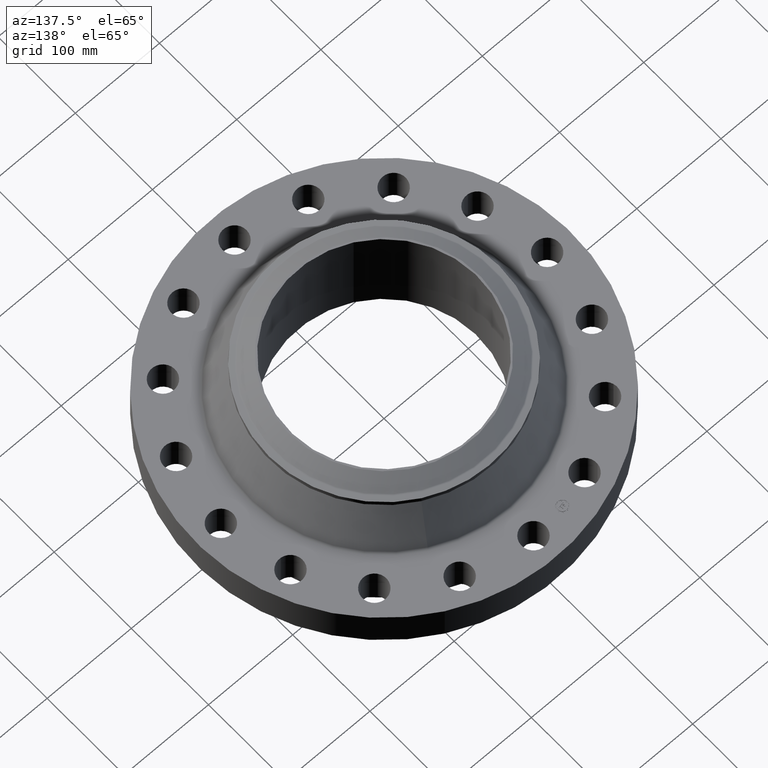
[diagram: clean part render]
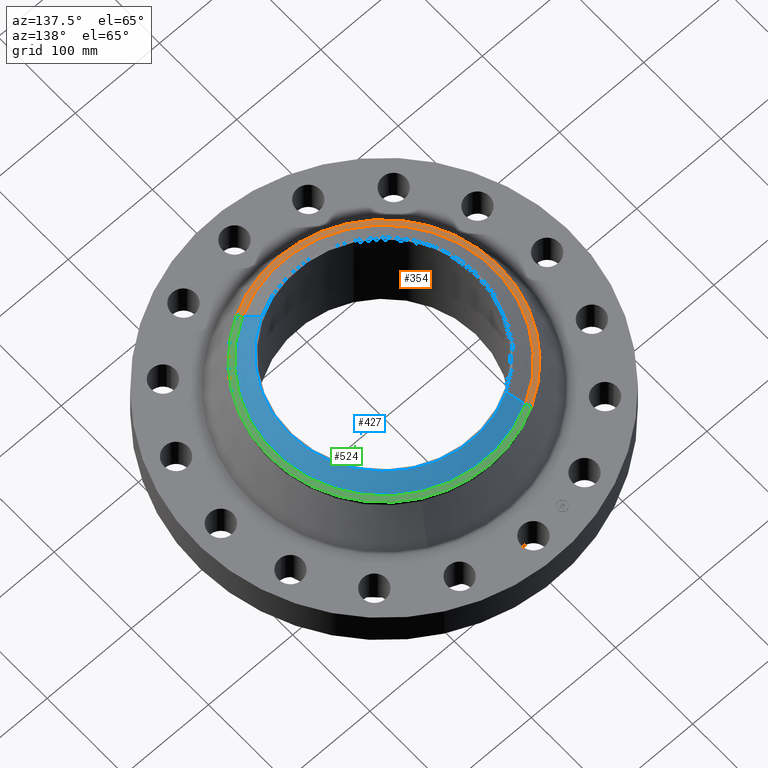
[diagram: same view with three faces highlighted in distinct colors, each labeled with its STEP entity id]
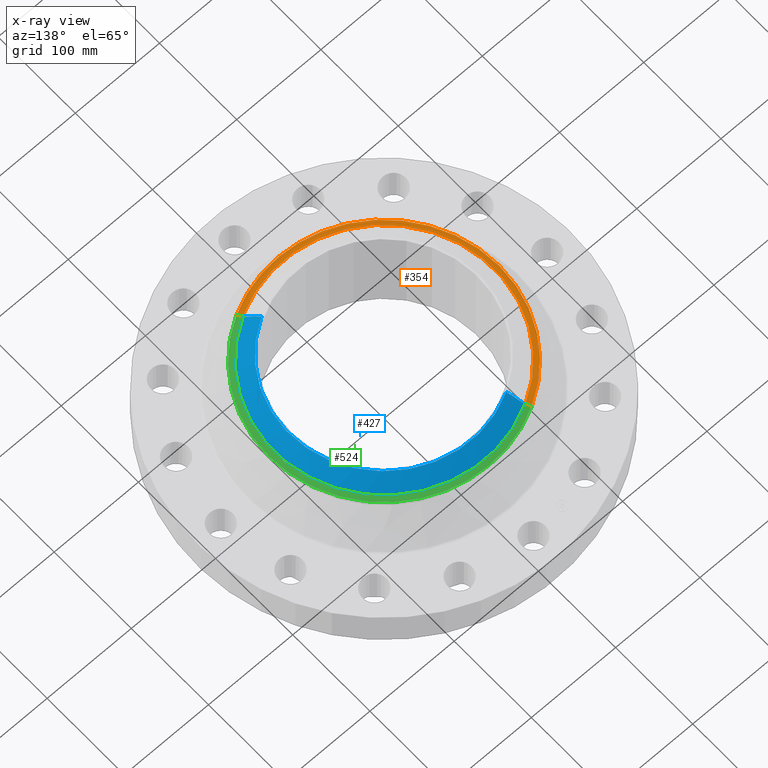
[diagram: x-ray of the same camera — body ghosted, the three highlighted faces saturated]
A machine part, auxiliary view with three faces highlighted in distinct colors.
The next image is the same camera in x-ray (body ghosted, the three faces saturated) — at least one of them is partly hidden behind the body in this view.
Their STEP definitions:

[orange] entity #354 — the highlighted conical surface has half-angle 80 deg.
#292=AXIS2_PLACEMENT_3D('Circle Axis2P3D',#290,#291,$) ;
#305=AXIS2_PLACEMENT_3D('Circle Axis2P3D',#303,#304,$) ;
#326=AXIS2_PLACEMENT_3D('Cone Axis2P3D',#323,#324,#325) ;
#337=AXIS2_PLACEMENT_3D('Circle Axis2P3D',#335,#336,$) ;
#273=CARTESIAN_POINT('Vertex',(-2.57691227001,-4.71700627018,4.00200584757)) ;
#287=CARTESIAN_POINT('Vertex',(2.57691227001,-4.71700627018,4.00200584757)) ;
#290=CARTESIAN_POINT('Axis2P3D Location',(0.,0.,4.00200584757)) ;
#303=CARTESIAN_POINT('Axis2P3D Location',(0.,0.,4.00200584757)) ;
#307=CARTESIAN_POINT('Vertex',(-2.57691227001,4.71700627018,4.00200584757)) ;
#323=CARTESIAN_POINT('Axis2P3D Location',(0.,0.,4.04141601924)) ;
#328=CARTESIAN_POINT('Line Origine',(2.52333498223,-4.61893370274,4.0217109334)) ;
#332=CARTESIAN_POINT('Vertex',(2.46975769445,-4.52086113529,4.04141601924)) ;
#335=CARTESIAN_POINT('Axis2P3D Location',(0.,0.,4.04141601924)) ;
#339=CARTESIAN_POINT('Vertex',(-2.46975769445,4.52086113529,4.04141601924)) ;
#342=CARTESIAN_POINT('Line Origine',(-2.52333498223,4.61893370274,4.0217109334)) ;
#291=DIRECTION('Axis2P3D Direction',(0.,0.,-0.0393700787402)) ;
#304=DIRECTION('Axis2P3D Direction',(0.,0.,-0.0393700787402)) ;
#324=DIRECTION('Axis2P3D Direction',(-0.,-0.,-0.0393700787402)) ;
#325=DIRECTION('Axis2P3D XDirection',(-0.0188750212049,0.0345504945626,0.)) ;
#329=DIRECTION('Vector Direction',(0.0185882672208,-0.0340255949157,-0.00683654242783)) ;
#336=DIRECTION('Axis2P3D Direction',(0.,0.,-0.0393700787402)) ;
#343=DIRECTION('Vector Direction',(-0.0185882672208,0.0340255949157,-0.00683654242783)) ;
#330=VECTOR('Line Direction',#329,0.0393700787402) ;
#344=VECTOR('Line Direction',#343,0.0393700787402) ;
#348=ORIENTED_EDGE('',*,*,#334,.F.) ;
#349=ORIENTED_EDGE('',*,*,#341,.F.) ;
#350=ORIENTED_EDGE('',*,*,#346,.T.) ;
#351=ORIENTED_EDGE('',*,*,#309,.T.) ;
#352=ORIENTED_EDGE('',*,*,#294,.F.) ;
#354=ADVANCED_FACE('PartBody',(#353),#327,.T.) ;
#293=CIRCLE('generated circle',#292,5.37500000002) ;
#306=CIRCLE('generated circle',#305,5.37500000002) ;
#338=CIRCLE('generated circle',#337,5.15149380994) ;
#327=CONICAL_SURFACE('Cone',#326,5.15149380994,1.3962634016) ;
#294=EDGE_CURVE('',#288,#274,#293,.T.) ;
#309=EDGE_CURVE('',#308,#274,#306,.F.) ;
#334=EDGE_CURVE('',#333,#288,#331,.T.) ;
#341=EDGE_CURVE('',#340,#333,#338,.F.) ;
#346=EDGE_CURVE('',#340,#308,#345,.T.) ;
#347=EDGE_LOOP('',(#348,#349,#350,#351,#352)) ;
#353=FACE_OUTER_BOUND('',#347,.T.) ;
#331=LINE('Line',#328,#330) ;
#345=LINE('Line',#342,#344) ;
#274=VERTEX_POINT('',#273) ;
#288=VERTEX_POINT('',#287) ;
#308=VERTEX_POINT('',#307) ;
#333=VERTEX_POINT('',#332) ;
#340=VERTEX_POINT('',#339) ;

[blue] entity #427 — the highlighted conical surface has half-angle 52.5 deg.
#362=AXIS2_PLACEMENT_3D('Circle Axis2P3D',#360,#361,$) ;
#400=AXIS2_PLACEMENT_3D('Cone Axis2P3D',#397,#398,#399) ;
#411=AXIS2_PLACEMENT_3D('Circle Axis2P3D',#409,#410,$) ;
#360=CARTESIAN_POINT('Axis2P3D Location',(0.,0.,4.56000000002)) ;
#364=CARTESIAN_POINT('Vertex',(2.13523677381,-3.90852469741,4.56000000002)) ;
#366=CARTESIAN_POINT('Vertex',(-2.13523677381,3.90852469741,4.56000000002)) ;
#397=CARTESIAN_POINT('Axis2P3D Location',(0.,0.,4.56000000002)) ;
#402=CARTESIAN_POINT('Line Origine',(2.29017807636,-4.19214284931,4.31201437258)) ;
#406=CARTESIAN_POINT('Vertex',(2.44511937891,-4.47576100122,4.06402874515)) ;
#409=CARTESIAN_POINT('Axis2P3D Location',(0.,0.,4.06402874515)) ;
#413=CARTESIAN_POINT('Vertex',(-2.44511937891,4.47576100122,4.06402874515)) ;
#416=CARTESIAN_POINT('Line Origine',(-2.29017807636,4.19214284931,4.31201437258)) ;
#361=DIRECTION('Axis2P3D Direction',(0.,0.,-0.0393700787402)) ;
#398=DIRECTION('Axis2P3D Direction',(-0.,-0.,-0.0393700787402)) ;
#399=DIRECTION('Axis2P3D XDirection',(0.0188750212049,-0.0345504945626,0.)) ;
#403=DIRECTION('Vector Direction',(0.014974561121,-0.02741075027,-0.023966985394)) ;
#410=DIRECTION('Axis2P3D Direction',(0.,0.,-0.0393700787402)) ;
#417=DIRECTION('Vector Direction',(-0.014974561121,0.02741075027,-0.023966985394)) ;
#404=VECTOR('Line Direction',#403,0.0393700787402) ;
#418=VECTOR('Line Direction',#417,0.0393700787402) ;
#422=ORIENTED_EDGE('',*,*,#368,.F.) ;
#423=ORIENTED_EDGE('',*,*,#408,.T.) ;
#424=ORIENTED_EDGE('',*,*,#415,.T.) ;
#425=ORIENTED_EDGE('',*,*,#420,.F.) ;
#427=ADVANCED_FACE('PartBody',(#426),#401,.T.) ;
#363=CIRCLE('generated circle',#362,4.4537401575) ;
#412=CIRCLE('generated circle',#411,5.10010248105) ;
#401=CONICAL_SURFACE('Cone',#400,4.4537401575,0.916297857297) ;
#368=EDGE_CURVE('',#365,#367,#363,.F.) ;
#408=EDGE_CURVE('',#365,#407,#405,.T.) ;
#415=EDGE_CURVE('',#407,#414,#412,.F.) ;
#420=EDGE_CURVE('',#367,#414,#419,.T.) ;
#421=EDGE_LOOP('',(#422,#423,#424,#425)) ;
#426=FACE_OUTER_BOUND('',#421,.T.) ;
#405=LINE('Line',#402,#404) ;
#419=LINE('Line',#416,#418) ;
#365=VERTEX_POINT('',#364) ;
#367=VERTEX_POINT('',#366) ;
#407=VERTEX_POINT('',#406) ;
#414=VERTEX_POINT('',#413) ;

[green] entity #524 — the highlighted conical surface has half-angle 80 deg.
#285=AXIS2_PLACEMENT_3D('Circle Axis2P3D',#283,#284,$) ;
#312=AXIS2_PLACEMENT_3D('Circle Axis2P3D',#310,#311,$) ;
#326=AXIS2_PLACEMENT_3D('Cone Axis2P3D',#323,#324,#325) ;
#495=AXIS2_PLACEMENT_3D('Circle Axis2P3D',#493,#494,$) ;
#280=CARTESIAN_POINT('Vertex',(2.57691227001,4.71700627018,4.00200584757)) ;
#283=CARTESIAN_POINT('Axis2P3D Location',(0.,0.,4.00200584757)) ;
#287=CARTESIAN_POINT('Vertex',(2.57691227001,-4.71700627018,4.00200584757)) ;
#307=CARTESIAN_POINT('Vertex',(-2.57691227001,4.71700627018,4.00200584757)) ;
#310=CARTESIAN_POINT('Axis2P3D Location',(0.,0.,4.00200584757)) ;
#323=CARTESIAN_POINT('Axis2P3D Location',(0.,0.,4.04141601924)) ;
#328=CARTESIAN_POINT('Line Origine',(2.52333498223,-4.61893370274,4.0217109334)) ;
#332=CARTESIAN_POINT('Vertex',(2.46975769445,-4.52086113529,4.04141601924)) ;
#339=CARTESIAN_POINT('Vertex',(-2.46975769445,4.52086113529,4.04141601924)) ;
#342=CARTESIAN_POINT('Line Origine',(-2.52333498223,4.61893370274,4.0217109334)) ;
#493=CARTESIAN_POINT('Axis2P3D Location',(0.,0.,4.04141601924)) ;
#284=DIRECTION('Axis2P3D Direction',(0.,0.,-0.0393700787402)) ;
#311=DIRECTION('Axis2P3D Direction',(0.,0.,-0.0393700787402)) ;
#324=DIRECTION('Axis2P3D Direction',(-0.,-0.,-0.0393700787402)) ;
#325=DIRECTION('Axis2P3D XDirection',(-0.0188750212049,0.0345504945626,0.)) ;
#329=DIRECTION('Vector Direction',(0.0185882672208,-0.0340255949157,-0.00683654242783)) ;
#343=DIRECTION('Vector Direction',(-0.0185882672208,0.0340255949157,-0.00683654242783)) ;
#494=DIRECTION('Axis2P3D Direction',(0.,0.,0.0393700787402)) ;
#330=VECTOR('Line Direction',#329,0.0393700787402) ;
#344=VECTOR('Line Direction',#343,0.0393700787402) ;
#518=ORIENTED_EDGE('',*,*,#346,.F.) ;
#519=ORIENTED_EDGE('',*,*,#497,.F.) ;
#520=ORIENTED_EDGE('',*,*,#334,.T.) ;
#521=ORIENTED_EDGE('',*,*,#289,.T.) ;
#522=ORIENTED_EDGE('',*,*,#314,.F.) ;
#524=ADVANCED_FACE('PartBody',(#523),#327,.T.) ;
#286=CIRCLE('generated circle',#285,5.37500000002) ;
#313=CIRCLE('generated circle',#312,5.37500000002) ;
#496=CIRCLE('generated circle',#495,5.15149380994) ;
#327=CONICAL_SURFACE('Cone',#326,5.15149380994,1.3962634016) ;
#289=EDGE_CURVE('',#288,#281,#286,.F.) ;
#314=EDGE_CURVE('',#308,#281,#313,.T.) ;
#334=EDGE_CURVE('',#333,#288,#331,.T.) ;
#346=EDGE_CURVE('',#340,#308,#345,.T.) ;
#497=EDGE_CURVE('',#333,#340,#496,.T.) ;
#517=EDGE_LOOP('',(#518,#519,#520,#521,#522)) ;
#523=FACE_OUTER_BOUND('',#517,.T.) ;
#331=LINE('Line',#328,#330) ;
#345=LINE('Line',#342,#344) ;
#281=VERTEX_POINT('',#280) ;
#288=VERTEX_POINT('',#287) ;
#308=VERTEX_POINT('',#307) ;
#333=VERTEX_POINT('',#332) ;
#340=VERTEX_POINT('',#339) ;